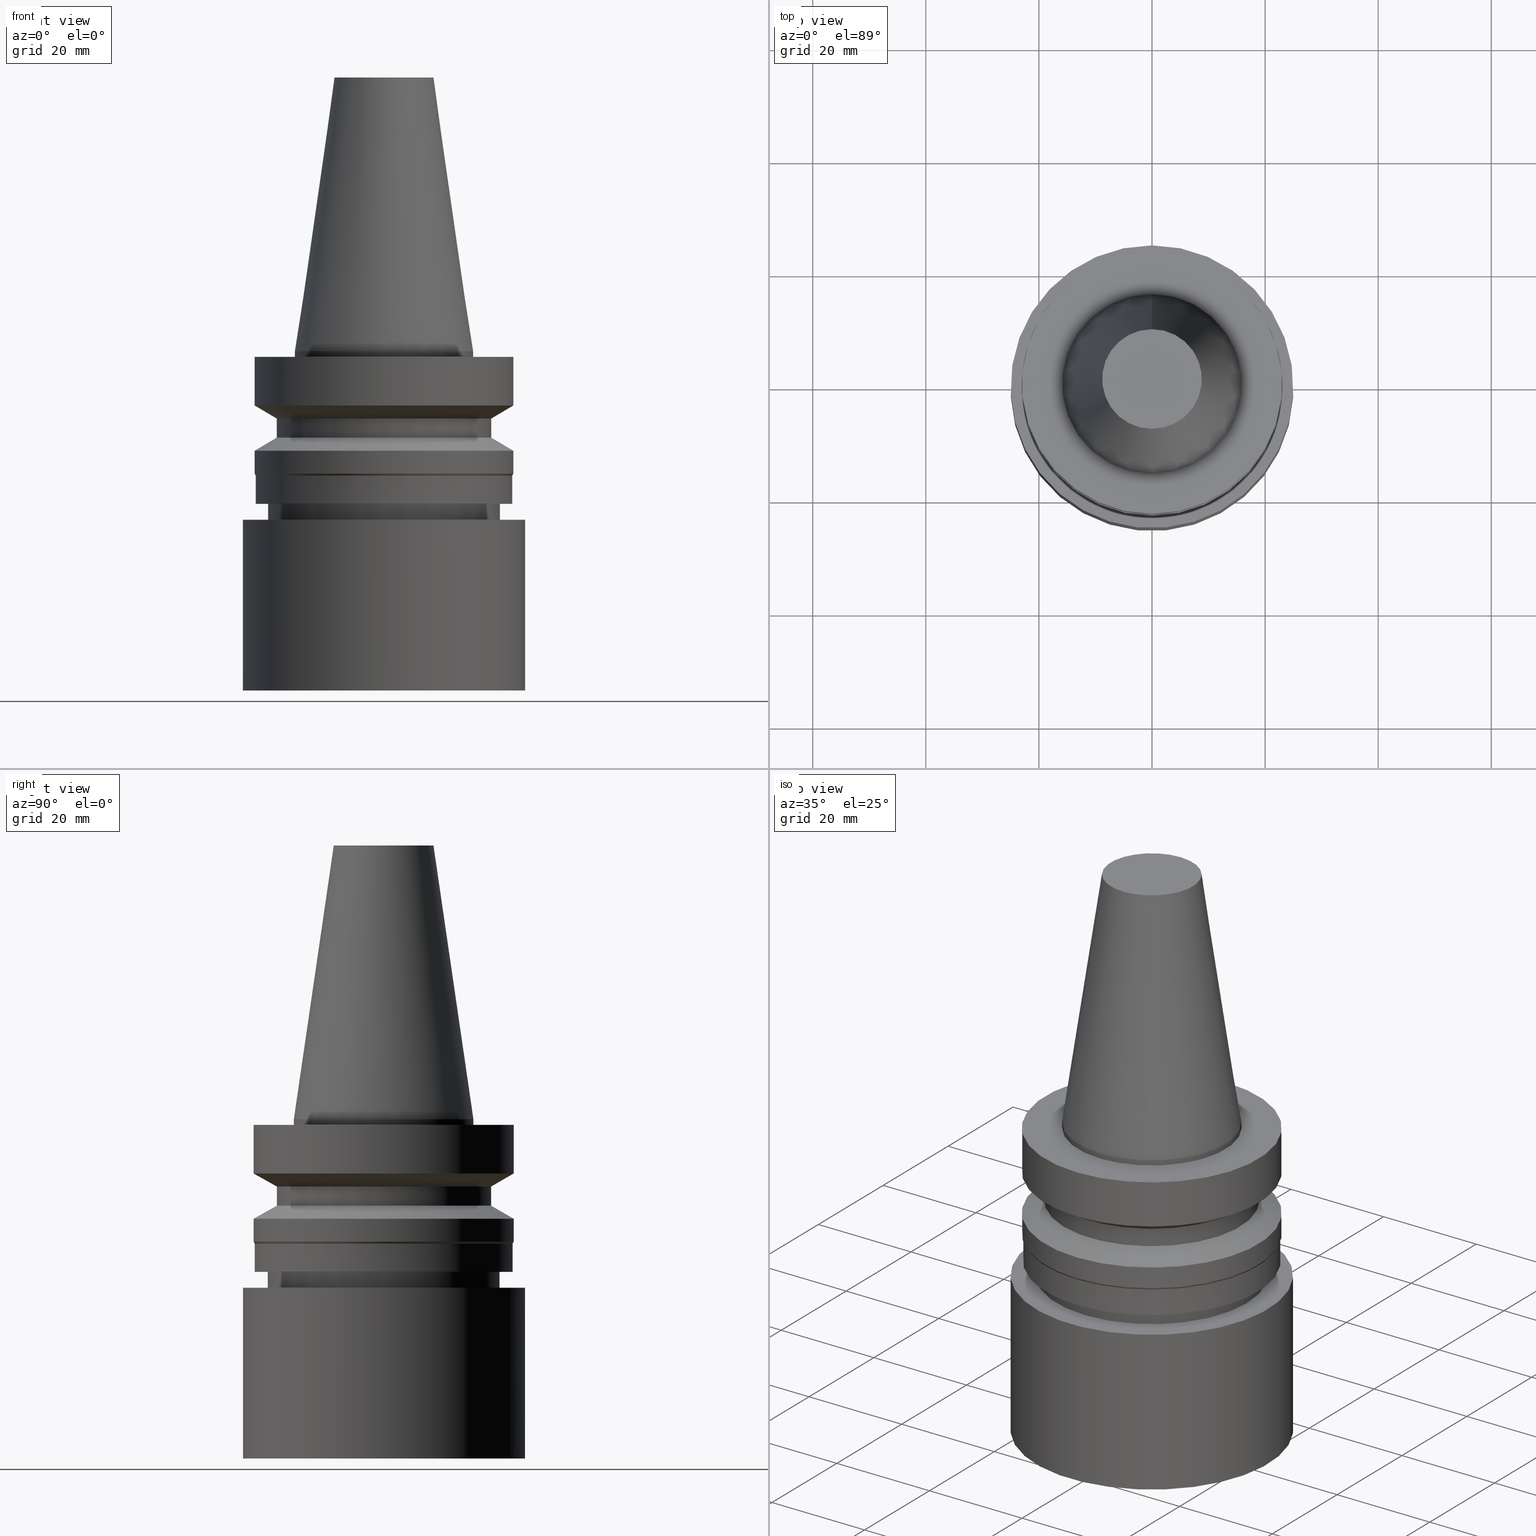
[diagram: canonical four-view strip — front | top / right | iso, engineering-drawing reading convention]
A machine part, canonical four-view strip (front | top / right | iso — engineering-drawing reading convention). The complete STEP part file that produces these views, byte-faithful:
ISO-10303-21;
HEADER;
FILE_DESCRIPTION((''),'1');
FILE_NAME('V:/90_\X2\53D65F9730C730FC30BF\X0\/00_\X2\6DE18DEF30C730FC30BF\X0\/ALL/BBT-BKUS\X2\FF76FF80FF9BFF78FF9E752852A05DE556F3\X0\201801/BBT30-MEGAER/BBT30-MEGAER32-60NL.stp','2018-02-02T07:30:25',(''),(''),'Spatial Interop R21 SP3','Kubotek KeyCreator 2011 V10.0.2 (22737)',' ');
FILE_SCHEMA(('automotive_design'));
ENDSEC;
DATA;
#1=MECHANICAL_DESIGN_GEOMETRIC_PRESENTATION_REPRESENTATION(' ',(#14,#15,#16,#17,#18,#19,#20,#21,#22,#23,#24,#25,#26,#27,#28,#29,#30,#31,#32,#33,#34,#35,#36,#37,#38,#39,#40,#41,#42,#43,#44,#45,#46,#47,#48,#49,#50,#51,#52,#53),#10);
#2=PRODUCT_DEFINITION_CONTEXT('',#54,'design');
#3=APPLICATION_PROTOCOL_DEFINITION('INTERNATIONAL STANDARD','automotive_design',1994,#54);
#4=PRODUCT_CATEGORY_RELATIONSHIP('NONE','NONE',#55,#56);
#5=SHAPE_DEFINITION_REPRESENTATION(#57,#58);
#6=PRODUCT_DEFINITION_CONTEXT('',#59,'design');
#7=APPLICATION_PROTOCOL_DEFINITION('INTERNATIONAL STANDARD','automotive_design',1994,#59);
#8=PRODUCT_CATEGORY_RELATIONSHIP('NONE','NONE',#60,#61);
#9=SHAPE_DEFINITION_REPRESENTATION(#62,#63);
#10= (GEOMETRIC_REPRESENTATION_CONTEXT(3)GLOBAL_UNCERTAINTY_ASSIGNED_CONTEXT((#66))GLOBAL_UNIT_ASSIGNED_CONTEXT((#68,#69,#70))REPRESENTATION_CONTEXT('NONE','WORKSPACE'));
#14=STYLED_ITEM('',(#72,#73),#74);
#15=STYLED_ITEM('',(#75),#76);
#16=STYLED_ITEM('',(#77,#78),#79);
#17=STYLED_ITEM('',(#80),#81);
#18=STYLED_ITEM('',(#82),#83);
#19=STYLED_ITEM('',(#84,#85),#86);
#20=STYLED_ITEM('',(#87),#88);
#21=STYLED_ITEM('',(#89),#90);
#22=STYLED_ITEM('',(#91,#92),#93);
#23=STYLED_ITEM('',(#94,#95),#96);
#24=STYLED_ITEM('',(#97,#98),#99);
#25=STYLED_ITEM('',(#100),#101);
#26=STYLED_ITEM('',(#102),#103);
#27=STYLED_ITEM('',(#104,#105),#106);
#28=STYLED_ITEM('',(#107),#108);
#29=STYLED_ITEM('',(#109,#110),#111);
#30=STYLED_ITEM('',(#112,#113),#114);
#31=STYLED_ITEM('',(#115,#116),#117);
#32=STYLED_ITEM('',(#118,#119),#120);
#33=STYLED_ITEM('',(#121,#122),#123);
#34=STYLED_ITEM('',(#124,#125),#126);
#35=STYLED_ITEM('',(#127),#128);
#36=STYLED_ITEM('',(#129),#130);
#37=STYLED_ITEM('',(#131,#132),#133);
#38=STYLED_ITEM('',(#134,#135),#136);
#39=STYLED_ITEM('',(#137,#138),#139);
#40=STYLED_ITEM('',(#140,#141),#142);
#41=STYLED_ITEM('',(#143),#144);
#42=STYLED_ITEM('',(#145),#146);
#43=STYLED_ITEM('',(#147,#148),#149);
#44=STYLED_ITEM('',(#150),#151);
#45=STYLED_ITEM('',(#152),#153);
#46=STYLED_ITEM('',(#154,#155),#156);
#47=STYLED_ITEM('',(#157),#158);
#48=STYLED_ITEM('',(#159),#160);
#49=STYLED_ITEM('',(#161,#162),#163);
#50=STYLED_ITEM('',(#164,#165),#166);
#51=STYLED_ITEM('',(#167,#168),#169);
#52=STYLED_ITEM('',(#170),#171);
#53=STYLED_ITEM('',(#172),#173);
#54=APPLICATION_CONTEXT(' ');
#55=PRODUCT_CATEGORY('part','NONE');
#56=PRODUCT_RELATED_PRODUCT_CATEGORY('detail',' ',(#174));
#57=PRODUCT_DEFINITION_SHAPE('NONE','NONE',#175);
#58=ADVANCED_BREP_SHAPE_REPRESENTATION('Unnamed[1]',(#139,#176),#10);
#59=APPLICATION_CONTEXT(' ');
#60=PRODUCT_CATEGORY('part','NONE');
#61=PRODUCT_RELATED_PRODUCT_CATEGORY('detail',' ',(#177));
#62=PRODUCT_DEFINITION_SHAPE('NONE','NONE',#178);
#63=ADVANCED_BREP_SHAPE_REPRESENTATION('Unnamed[1]',(#163,#179),#10);
#66=UNCERTAINTY_MEASURE_WITH_UNIT(LENGTH_MEASURE(1.0E-006),#68,'','');
#68= (CONVERSION_BASED_UNIT('MILLIMETRE',#182)LENGTH_UNIT()NAMED_UNIT(#185));
#69= (NAMED_UNIT(#187)PLANE_ANGLE_UNIT()SI_UNIT($,.RADIAN.));
#70= (NAMED_UNIT(#187)SOLID_ANGLE_UNIT()SI_UNIT($,.STERADIAN.));
#72=PRESENTATION_STYLE_ASSIGNMENT((#193));
#73=PRESENTATION_STYLE_ASSIGNMENT((#194));
#74=ADVANCED_FACE('Unnamed[1]',(#195,#196),#197,.T.);
#75=PRESENTATION_STYLE_ASSIGNMENT((#198));
#76=EDGE_CURVE('Unnamed[1]',#199,#199,#200,.T.);
#77=PRESENTATION_STYLE_ASSIGNMENT((#201));
#78=PRESENTATION_STYLE_ASSIGNMENT((#202));
#79=ADVANCED_FACE('Unnamed[1]',(#203,#204),#205,.T.);
#80=PRESENTATION_STYLE_ASSIGNMENT((#206));
#81=EDGE_CURVE('Unnamed[1]',#207,#207,#208,.T.);
#82=PRESENTATION_STYLE_ASSIGNMENT((#209));
#83=EDGE_CURVE('Unnamed[1]',#210,#210,#211,.T.);
#84=PRESENTATION_STYLE_ASSIGNMENT((#212));
#85=PRESENTATION_STYLE_ASSIGNMENT((#213));
#86=ADVANCED_FACE('Unnamed[1]',(#214),#215,.T.);
#87=PRESENTATION_STYLE_ASSIGNMENT((#216));
#88=EDGE_CURVE('Unnamed[1]',#217,#217,#218,.T.);
#89=PRESENTATION_STYLE_ASSIGNMENT((#219));
#90=EDGE_CURVE('Unnamed[1]',#220,#220,#221,.T.);
#91=PRESENTATION_STYLE_ASSIGNMENT((#222));
#92=PRESENTATION_STYLE_ASSIGNMENT((#223));
#93=ADVANCED_FACE('Unnamed[1]',(#224,#225),#226,.T.);
#94=PRESENTATION_STYLE_ASSIGNMENT((#227));
#95=PRESENTATION_STYLE_ASSIGNMENT((#228));
#96=ADVANCED_FACE('Unnamed[1]',(#229,#230),#231,.T.);
#97=PRESENTATION_STYLE_ASSIGNMENT((#232));
#98=PRESENTATION_STYLE_ASSIGNMENT((#233));
#99=ADVANCED_FACE('Unnamed[1]',(#234,#235),#236,.T.);
#100=PRESENTATION_STYLE_ASSIGNMENT((#237));
#101=EDGE_CURVE('Unnamed[1]',#238,#238,#239,.T.);
#102=PRESENTATION_STYLE_ASSIGNMENT((#240));
#103=EDGE_CURVE('Unnamed[1]',#241,#241,#242,.T.);
#104=PRESENTATION_STYLE_ASSIGNMENT((#243));
#105=PRESENTATION_STYLE_ASSIGNMENT((#244));
#106=ADVANCED_FACE('Unnamed[1]',(#245,#246),#247,.T.);
#107=PRESENTATION_STYLE_ASSIGNMENT((#248));
#108=EDGE_CURVE('Unnamed[1]',#249,#249,#250,.T.);
#109=PRESENTATION_STYLE_ASSIGNMENT((#251));
#110=PRESENTATION_STYLE_ASSIGNMENT((#252));
#111=ADVANCED_FACE('Unnamed[1]',(#253,#254),#255,.T.);
#112=PRESENTATION_STYLE_ASSIGNMENT((#256));
#113=PRESENTATION_STYLE_ASSIGNMENT((#257));
#114=ADVANCED_FACE('Unnamed[1]',(#258,#259),#260,.T.);
#115=PRESENTATION_STYLE_ASSIGNMENT((#261));
#116=PRESENTATION_STYLE_ASSIGNMENT((#262));
#117=ADVANCED_FACE('Unnamed[1]',(#263,#264),#265,.T.);
#118=PRESENTATION_STYLE_ASSIGNMENT((#266));
#119=PRESENTATION_STYLE_ASSIGNMENT((#267));
#120=ADVANCED_FACE('Unnamed[1]',(#268,#269),#270,.T.);
#121=PRESENTATION_STYLE_ASSIGNMENT((#271));
#122=PRESENTATION_STYLE_ASSIGNMENT((#272));
#123=ADVANCED_FACE('Unnamed[1]',(#273),#274,.T.);
#124=PRESENTATION_STYLE_ASSIGNMENT((#275));
#125=PRESENTATION_STYLE_ASSIGNMENT((#276));
#126=ADVANCED_FACE('Unnamed[1]',(#277,#278),#279,.T.);
#127=PRESENTATION_STYLE_ASSIGNMENT((#280));
#128=EDGE_CURVE('Unnamed[1]',#281,#281,#282,.T.);
#129=PRESENTATION_STYLE_ASSIGNMENT((#283));
#130=EDGE_CURVE('Unnamed[1]',#284,#284,#285,.T.);
#131=PRESENTATION_STYLE_ASSIGNMENT((#286));
#132=PRESENTATION_STYLE_ASSIGNMENT((#287));
#133=ADVANCED_FACE('Unnamed[1]',(#288),#289,.T.);
#134=PRESENTATION_STYLE_ASSIGNMENT((#290));
#135=PRESENTATION_STYLE_ASSIGNMENT((#291));
#136=ADVANCED_FACE('Unnamed[1]',(#292,#293),#294,.T.);
#137=PRESENTATION_STYLE_ASSIGNMENT((#295));
#138=PRESENTATION_STYLE_ASSIGNMENT((#296));
#139=MANIFOLD_SOLID_BREP('Unnamed[1]',#297);
#140=PRESENTATION_STYLE_ASSIGNMENT((#298));
#141=PRESENTATION_STYLE_ASSIGNMENT((#299));
#142=ADVANCED_FACE('Unnamed[1]',(#300,#301),#302,.T.);
#143=PRESENTATION_STYLE_ASSIGNMENT((#303));
#144=EDGE_CURVE('Unnamed[1]',#304,#304,#305,.T.);
#145=PRESENTATION_STYLE_ASSIGNMENT((#306));
#146=EDGE_CURVE('Unnamed[1]',#307,#307,#308,.T.);
#147=PRESENTATION_STYLE_ASSIGNMENT((#309));
#148=PRESENTATION_STYLE_ASSIGNMENT((#310));
#149=ADVANCED_FACE('Unnamed[1]',(#311,#312),#313,.T.);
#150=PRESENTATION_STYLE_ASSIGNMENT((#314));
#151=EDGE_CURVE('Unnamed[1]',#315,#315,#316,.T.);
#152=PRESENTATION_STYLE_ASSIGNMENT((#317));
#153=EDGE_CURVE('Unnamed[1]',#318,#318,#319,.T.);
#154=PRESENTATION_STYLE_ASSIGNMENT((#320));
#155=PRESENTATION_STYLE_ASSIGNMENT((#321));
#156=ADVANCED_FACE('Unnamed[1]',(#322,#323),#324,.T.);
#157=PRESENTATION_STYLE_ASSIGNMENT((#325));
#158=EDGE_CURVE('Unnamed[1]',#326,#326,#327,.T.);
#159=PRESENTATION_STYLE_ASSIGNMENT((#328));
#160=EDGE_CURVE('Unnamed[1]',#329,#329,#330,.T.);
#161=PRESENTATION_STYLE_ASSIGNMENT((#331));
#162=PRESENTATION_STYLE_ASSIGNMENT((#332));
#163=MANIFOLD_SOLID_BREP('Unnamed[1]',#333);
#164=PRESENTATION_STYLE_ASSIGNMENT((#334));
#165=PRESENTATION_STYLE_ASSIGNMENT((#335));
#166=ADVANCED_FACE('Unnamed[1]',(#336,#337),#338,.T.);
#167=PRESENTATION_STYLE_ASSIGNMENT((#339));
#168=PRESENTATION_STYLE_ASSIGNMENT((#340));
#169=ADVANCED_FACE('Unnamed[1]',(#341),#342,.T.);
#170=PRESENTATION_STYLE_ASSIGNMENT((#343));
#171=EDGE_CURVE('Unnamed[1]',#344,#344,#345,.T.);
#172=PRESENTATION_STYLE_ASSIGNMENT((#346));
#173=EDGE_CURVE('Unnamed[1]',#347,#347,#348,.T.);
#174=PRODUCT('Unnamed[1]','Unnamed[1]','PART-Unnamed[1]-DESC',(#349));
#175=PRODUCT_DEFINITION('NONE','NONE',#350,#2);
#176=AXIS2_PLACEMENT_3D('',#351,#352,#353);
#177=PRODUCT('Unnamed[1]','Unnamed[1]','PART-Unnamed[1]-DESC',(#354));
#178=PRODUCT_DEFINITION('NONE','NONE',#355,#6);
#179=AXIS2_PLACEMENT_3D('',#356,#357,#358);
#182=LENGTH_MEASURE_WITH_UNIT(LENGTH_MEASURE(1.0),#359);
#185=DIMENSIONAL_EXPONENTS(1.0,0.0,0.0,0.0,0.0,0.0,0.0);
#187=DIMENSIONAL_EXPONENTS(0.0,0.0,0.0,0.0,0.0,0.0,0.0);
#193=SURFACE_STYLE_USAGE(.BOTH.,#360);
#194=CURVE_STYLE('',#361,POSITIVE_LENGTH_MEASURE(1000.0),#362);
#195=FACE_BOUND('',#363,.T.);
#196=FACE_BOUND('',#364,.T.);
#197=CYLINDRICAL_SURFACE('',#365,23.0);
#198=CURVE_STYLE('',#366,POSITIVE_LENGTH_MEASURE(1000.0),#367);
#199=VERTEX_POINT('',#368);
#200=CIRCLE('',#369,25.0);
#201=SURFACE_STYLE_USAGE(.BOTH.,#370);
#202=CURVE_STYLE('',#371,POSITIVE_LENGTH_MEASURE(1000.0),#372);
#203=FACE_BOUND('',#373,.T.);
#204=FACE_BOUND('',#374,.T.);
#205=CYLINDRICAL_SURFACE('',#375,20.0);
#206=CURVE_STYLE('',#376,POSITIVE_LENGTH_MEASURE(1000.0),#377);
#207=VERTEX_POINT('',#378);
#208=CIRCLE('',#379,15.875);
#209=CURVE_STYLE('',#380,POSITIVE_LENGTH_MEASURE(1000.0),#381);
#210=VERTEX_POINT('',#382);
#211=CIRCLE('',#383,8.81650000198669);
#212=SURFACE_STYLE_USAGE(.BOTH.,#384);
#213=CURVE_STYLE('',#385,POSITIVE_LENGTH_MEASURE(1000.0),#386);
#214=FACE_OUTER_BOUND('',#387,.T.);
#215=PLANE('',#388);
#216=CURVE_STYLE('',#389,POSITIVE_LENGTH_MEASURE(1000.0),#390);
#217=VERTEX_POINT('',#391);
#218=CIRCLE('',#392,19.0);
#219=CURVE_STYLE('',#393,POSITIVE_LENGTH_MEASURE(1000.0),#394);
#220=VERTEX_POINT('',#395);
#221=CIRCLE('',#396,25.0);
#222=SURFACE_STYLE_USAGE(.BOTH.,#397);
#223=CURVE_STYLE('',#398,POSITIVE_LENGTH_MEASURE(1000.0),#399);
#224=FACE_BOUND('',#400,.T.);
#225=FACE_BOUND('',#401,.T.);
#226=CYLINDRICAL_SURFACE('',#402,19.0);
#227=SURFACE_STYLE_USAGE(.BOTH.,#403);
#228=CURVE_STYLE('',#404,POSITIVE_LENGTH_MEASURE(1000.0),#405);
#229=FACE_BOUND('',#406,.T.);
#230=FACE_BOUND('',#407,.T.);
#231=CONICAL_SURFACE('',#408,12.3457500009933,0.144815870013618);
#232=SURFACE_STYLE_USAGE(.BOTH.,#409);
#233=CURVE_STYLE('',#410,POSITIVE_LENGTH_MEASURE(1000.0),#411);
#234=FACE_BOUND('',#412,.T.);
#235=FACE_BOUND('',#413,.T.);
#236=CYLINDRICAL_SURFACE('',#414,20.4999999999961);
#237=CURVE_STYLE('',#415,POSITIVE_LENGTH_MEASURE(1000.0),#416);
#238=VERTEX_POINT('',#417);
#239=CIRCLE('',#418,22.7999999999997);
#240=CURVE_STYLE('',#419,POSITIVE_LENGTH_MEASURE(1000.0),#420);
#241=VERTEX_POINT('',#421);
#242=CIRCLE('',#422,23.0);
#243=SURFACE_STYLE_USAGE(.BOTH.,#423);
#244=CURVE_STYLE('',#424,POSITIVE_LENGTH_MEASURE(1000.0),#425);
#245=FACE_OUTER_BOUND('',#426,.T.);
#246=FACE_BOUND('',#427,.T.);
#247=PLANE('',#428);
#248=CURVE_STYLE('',#429,POSITIVE_LENGTH_MEASURE(1000.0),#430);
#249=VERTEX_POINT('',#431);
#250=CIRCLE('',#432,20.5000000000012);
#251=SURFACE_STYLE_USAGE(.BOTH.,#433);
#252=CURVE_STYLE('',#434,POSITIVE_LENGTH_MEASURE(1000.0),#435);
#253=FACE_BOUND('',#436,.T.);
#254=FACE_BOUND('',#437,.T.);
#255=CYLINDRICAL_SURFACE('',#438,25.0);
#256=SURFACE_STYLE_USAGE(.BOTH.,#439);
#257=CURVE_STYLE('',#440,POSITIVE_LENGTH_MEASURE(1000.0),#441);
#258=FACE_BOUND('',#442,.T.);
#259=FACE_BOUND('',#443,.T.);
#260=CONICAL_SURFACE('',#444,21.0,1.04719755058881);
#261=SURFACE_STYLE_USAGE(.BOTH.,#445);
#262=CURVE_STYLE('',#446,POSITIVE_LENGTH_MEASURE(1000.0),#447);
#263=FACE_BOUND('',#448,.T.);
#264=FACE_BOUND('',#449,.T.);
#265=CONICAL_SURFACE('',#450,22.8999999999998,0.523598775621832);
#266=SURFACE_STYLE_USAGE(.BOTH.,#451);
#267=CURVE_STYLE('',#452,POSITIVE_LENGTH_MEASURE(1000.0),#453);
#268=FACE_BOUND('',#454,.T.);
#269=FACE_BOUND('',#455,.T.);
#270=CYLINDRICAL_SURFACE('',#456,15.875);
#271=SURFACE_STYLE_USAGE(.BOTH.,#457);
#272=CURVE_STYLE('',#458,POSITIVE_LENGTH_MEASURE(1000.0),#459);
#273=FACE_OUTER_BOUND('',#460,.T.);
#274=PLANE('',#461);
#275=SURFACE_STYLE_USAGE(.BOTH.,#462);
#276=CURVE_STYLE('',#463,POSITIVE_LENGTH_MEASURE(1000.0),#464);
#277=FACE_BOUND('',#465,.T.);
#278=FACE_BOUND('',#466,.T.);
#279=CONICAL_SURFACE('',#467,21.0,1.04719755058882);
#280=CURVE_STYLE('',#468,POSITIVE_LENGTH_MEASURE(1000.0),#469);
#281=VERTEX_POINT('',#470);
#282=CIRCLE('',#471,20.0000000000001);
#283=CURVE_STYLE('',#472,POSITIVE_LENGTH_MEASURE(1000.0),#473);
#284=VERTEX_POINT('',#474);
#285=CIRCLE('',#475,15.875);
#286=SURFACE_STYLE_USAGE(.BOTH.,#476);
#287=CURVE_STYLE('',#477,POSITIVE_LENGTH_MEASURE(1000.0),#478);
#288=FACE_OUTER_BOUND('',#479,.T.);
#289=PLANE('',#480);
#290=SURFACE_STYLE_USAGE(.BOTH.,#481);
#291=CURVE_STYLE('',#482,POSITIVE_LENGTH_MEASURE(1000.0),#483);
#292=FACE_BOUND('',#484,.T.);
#293=FACE_BOUND('',#485,.T.);
#294=CONICAL_SURFACE('',#486,19.4499999999998,0.523598775598221);
#295=SURFACE_STYLE_USAGE(.BOTH.,#487);
#296=CURVE_STYLE('',#488,POSITIVE_LENGTH_MEASURE(1000.0),#489);
#297=CLOSED_SHELL('',(#123,#96,#120,#106,#166,#114,#93,#126,#74,#117,#156,#149,#99,#142,#79,#136,#133));
#298=SURFACE_STYLE_USAGE(.BOTH.,#490);
#299=CURVE_STYLE('',#491,POSITIVE_LENGTH_MEASURE(1000.0),#492);
#300=FACE_BOUND('',#493,.T.);
#301=FACE_BOUND('',#494,.T.);
#302=CONICAL_SURFACE('',#495,20.2500000000006,1.04719755120244);
#303=CURVE_STYLE('',#496,POSITIVE_LENGTH_MEASURE(1000.0),#497);
#304=VERTEX_POINT('',#498);
#305=CIRCLE('',#499,20.0);
#306=CURVE_STYLE('',#500,POSITIVE_LENGTH_MEASURE(1000.0),#501);
#307=VERTEX_POINT('',#502);
#308=CIRCLE('',#503,20.4999999999911);
#309=SURFACE_STYLE_USAGE(.BOTH.,#504);
#310=CURVE_STYLE('',#505,POSITIVE_LENGTH_MEASURE(1000.0),#506);
#311=FACE_BOUND('',#507,.T.);
#312=FACE_OUTER_BOUND('',#508,.T.);
#313=PLANE('',#509);
#314=CURVE_STYLE('',#510,POSITIVE_LENGTH_MEASURE(1000.0),#511);
#315=VERTEX_POINT('',#512);
#316=CIRCLE('',#513,23.0);
#317=CURVE_STYLE('',#514,POSITIVE_LENGTH_MEASURE(1000.0),#515);
#318=VERTEX_POINT('',#516);
#319=CIRCLE('',#517,23.0);
#320=SURFACE_STYLE_USAGE(.BOTH.,#518);
#321=CURVE_STYLE('',#519,POSITIVE_LENGTH_MEASURE(1000.0),#520);
#322=FACE_BOUND('',#521,.T.);
#323=FACE_BOUND('',#522,.T.);
#324=CYLINDRICAL_SURFACE('',#523,22.7999999999999);
#325=CURVE_STYLE('',#524,POSITIVE_LENGTH_MEASURE(1000.0),#525);
#326=VERTEX_POINT('',#526);
#327=CIRCLE('',#527,23.0);
#328=CURVE_STYLE('',#528,POSITIVE_LENGTH_MEASURE(1000.0),#529);
#329=VERTEX_POINT('',#530);
#330=CIRCLE('',#531,18.8999999999996);
#331=SURFACE_STYLE_USAGE(.BOTH.,#532);
#332=CURVE_STYLE('',#533,POSITIVE_LENGTH_MEASURE(1000.0),#534);
#333=CLOSED_SHELL('',(#86,#169,#111));
#334=SURFACE_STYLE_USAGE(.BOTH.,#535);
#335=CURVE_STYLE('',#536,POSITIVE_LENGTH_MEASURE(1000.0),#537);
#336=FACE_BOUND('',#538,.T.);
#337=FACE_BOUND('',#539,.T.);
#338=CYLINDRICAL_SURFACE('',#540,23.0);
#339=SURFACE_STYLE_USAGE(.BOTH.,#541);
#340=CURVE_STYLE('',#542,POSITIVE_LENGTH_MEASURE(1000.0),#543);
#341=FACE_OUTER_BOUND('',#544,.T.);
#342=PLANE('',#545);
#343=CURVE_STYLE('',#546,POSITIVE_LENGTH_MEASURE(1000.0),#547);
#344=VERTEX_POINT('',#548);
#345=CIRCLE('',#549,22.8000000000001);
#346=CURVE_STYLE('',#550,POSITIVE_LENGTH_MEASURE(1000.0),#551);
#347=VERTEX_POINT('',#552);
#348=CIRCLE('',#553,19.0);
#349=PRODUCT_CONTEXT('',#54,'mechanical');
#350=PRODUCT_DEFINITION_FORMATION_WITH_SPECIFIED_SOURCE(' ','NONE',#174,.NOT_KNOWN.);
#351=CARTESIAN_POINT('',(0.0,0.0,0.0));
#352=DIRECTION('',(0.0,0.0,1.0));
#353=DIRECTION('',(1.0,0.0,0.0));
#354=PRODUCT_CONTEXT('',#59,'mechanical');
#355=PRODUCT_DEFINITION_FORMATION_WITH_SPECIFIED_SOURCE(' ','NONE',#177,.NOT_KNOWN.);
#356=CARTESIAN_POINT('',(0.0,0.0,0.0));
#357=DIRECTION('',(0.0,0.0,1.0));
#358=DIRECTION('',(1.0,0.0,0.0));
#359= (NAMED_UNIT(#185)LENGTH_UNIT()SI_UNIT(.MILLI.,.METRE.));
#360=SURFACE_SIDE_STYLE('',(#555));
#361=DRAUGHTING_PRE_DEFINED_CURVE_FONT('continuous');
#362=COLOUR_RGB('',0.0,1.0,0.0);
#363=EDGE_LOOP('',(#556));
#364=EDGE_LOOP('',(#557));
#365=AXIS2_PLACEMENT_3D('',#558,#559,#560);
#366=DRAUGHTING_PRE_DEFINED_CURVE_FONT('continuous');
#367=COLOUR_RGB('',0.0,1.0,0.0);
#368=CARTESIAN_POINT('',(1.82472373072956E-015,25.0,-29.8));
#369=AXIS2_PLACEMENT_3D('',#561,#562,#563);
#370=SURFACE_SIDE_STYLE('',(#564));
#371=DRAUGHTING_PRE_DEFINED_CURVE_FONT('continuous');
#372=COLOUR_RGB('',0.0,1.0,0.0);
#373=EDGE_LOOP('',(#565));
#374=EDGE_LOOP('',(#566));
#375=AXIS2_PLACEMENT_3D('',#567,#568,#569);
#376=DRAUGHTING_PRE_DEFINED_CURVE_FONT('continuous');
#377=COLOUR_RGB('',0.0,1.0,0.0);
#378=CARTESIAN_POINT('',(6.12323399573675E-017,15.875,-0.999999999999998));
#379=AXIS2_PLACEMENT_3D('',#570,#571,#572);
#380=DRAUGHTING_PRE_DEFINED_CURVE_FONT('continuous');
#381=COLOUR_RGB('',0.0,1.0,0.0);
#382=CARTESIAN_POINT('',(-2.96364525393659E-015,8.81650000198669,48.4));
#383=AXIS2_PLACEMENT_3D('',#573,#574,#575);
#384=SURFACE_SIDE_STYLE('',(#576));
#385=DRAUGHTING_PRE_DEFINED_CURVE_FONT('continuous');
#386=COLOUR_RGB('',0.0,1.0,0.0);
#387=EDGE_LOOP('',(#577));
#388=AXIS2_PLACEMENT_3D('',#578,#579,#580);
#389=DRAUGHTING_PRE_DEFINED_CURVE_FONT('continuous');
#390=COLOUR_RGB('',0.0,1.0,0.0);
#391=CARTESIAN_POINT('',(7.29240495619202E-016,19.0,-11.90940108));
#392=AXIS2_PLACEMENT_3D('',#581,#582,#583);
#393=DRAUGHTING_PRE_DEFINED_CURVE_FONT('continuous');
#394=COLOUR_RGB('',0.0,1.0,0.0);
#395=CARTESIAN_POINT('',(3.67394039744206E-015,25.0,-60.0));
#396=AXIS2_PLACEMENT_3D('',#584,#585,#586);
#397=SURFACE_SIDE_STYLE('',(#587));
#398=DRAUGHTING_PRE_DEFINED_CURVE_FONT('continuous');
#399=COLOUR_RGB('',0.0,1.0,0.0);
#400=EDGE_LOOP('',(#588));
#401=EDGE_LOOP('',(#589));
#402=AXIS2_PLACEMENT_3D('',#590,#591,#592);
#403=SURFACE_SIDE_STYLE('',(#593));
#404=DRAUGHTING_PRE_DEFINED_CURVE_FONT('continuous');
#405=COLOUR_RGB('',0.0,1.0,0.0);
#406=EDGE_LOOP('',(#594));
#407=EDGE_LOOP('',(#595));
#408=AXIS2_PLACEMENT_3D('',#596,#597,#598);
#409=SURFACE_SIDE_STYLE('',(#599));
#410=DRAUGHTING_PRE_DEFINED_CURVE_FONT('continuous');
#411=COLOUR_RGB('',0.0,1.0,0.0);
#412=EDGE_LOOP('',(#600));
#413=EDGE_LOOP('',(#601));
#414=AXIS2_PLACEMENT_3D('',#602,#603,#604);
#415=DRAUGHTING_PRE_DEFINED_CURVE_FONT('continuous');
#416=COLOUR_RGB('',0.0,1.0,0.0);
#417=CARTESIAN_POINT('',(1.34711147906111E-015,22.7999999999997,-21.9999999999841));
#418=AXIS2_PLACEMENT_3D('',#605,#606,#607);
#419=DRAUGHTING_PRE_DEFINED_CURVE_FONT('continuous');
#420=COLOUR_RGB('',0.0,1.0,0.0);
#421=CARTESIAN_POINT('',(1.32589997428773E-015,23.0,-21.6535898384886));
#422=AXIS2_PLACEMENT_3D('',#608,#609,#610);
#423=SURFACE_SIDE_STYLE('',(#611));
#424=DRAUGHTING_PRE_DEFINED_CURVE_FONT('continuous');
#425=COLOUR_RGB('',0.0,1.0,0.0);
#426=EDGE_LOOP('',(#612));
#427=EDGE_LOOP('',(#613));
#428=AXIS2_PLACEMENT_3D('',#614,#615,#616);
#429=DRAUGHTING_PRE_DEFINED_CURVE_FONT('continuous');
#430=COLOUR_RGB('',0.0,1.0,0.0);
#431=CARTESIAN_POINT('',(2.03361678293588E-015,20.5000000000012,-33.211482434801));
#432=AXIS2_PLACEMENT_3D('',#617,#618,#619);
#433=SURFACE_SIDE_STYLE('',(#620));
#434=DRAUGHTING_PRE_DEFINED_CURVE_FONT('continuous');
#435=COLOUR_RGB('',0.0,1.0,0.0);
#436=EDGE_LOOP('',(#621));
#437=EDGE_LOOP('',(#622));
#438=AXIS2_PLACEMENT_3D('',#623,#624,#625);
#439=SURFACE_SIDE_STYLE('',(#626));
#440=DRAUGHTING_PRE_DEFINED_CURVE_FONT('continuous');
#441=COLOUR_RGB('',0.0,1.0,0.0);
#442=EDGE_LOOP('',(#627));
#443=EDGE_LOOP('',(#628));
#444=AXIS2_PLACEMENT_3D('',#629,#630,#631);
#445=SURFACE_SIDE_STYLE('',(#632));
#446=DRAUGHTING_PRE_DEFINED_CURVE_FONT('continuous');
#447=COLOUR_RGB('',0.0,1.0,0.0);
#448=EDGE_LOOP('',(#633));
#449=EDGE_LOOP('',(#634));
#450=AXIS2_PLACEMENT_3D('',#635,#636,#637);
#451=SURFACE_SIDE_STYLE('',(#638));
#452=DRAUGHTING_PRE_DEFINED_CURVE_FONT('continuous');
#453=COLOUR_RGB('',0.0,1.0,0.0);
#454=EDGE_LOOP('',(#639));
#455=EDGE_LOOP('',(#640));
#456=AXIS2_PLACEMENT_3D('',#641,#642,#643);
#457=SURFACE_SIDE_STYLE('',(#644));
#458=DRAUGHTING_PRE_DEFINED_CURVE_FONT('continuous');
#459=COLOUR_RGB('',0.0,1.0,0.0);
#460=EDGE_LOOP('',(#645));
#461=AXIS2_PLACEMENT_3D('',#646,#647,#648);
#462=SURFACE_SIDE_STYLE('',(#649));
#463=DRAUGHTING_PRE_DEFINED_CURVE_FONT('continuous');
#464=COLOUR_RGB('',0.0,1.0,0.0);
#465=EDGE_LOOP('',(#650));
#466=EDGE_LOOP('',(#651));
#467=AXIS2_PLACEMENT_3D('',#652,#653,#654);
#468=DRAUGHTING_PRE_DEFINED_CURVE_FONT('continuous');
#469=COLOUR_RGB('',0.0,1.0,0.0);
#470=CARTESIAN_POINT('',(2.88372138165122E-015,20.0000000000001,-47.0947441116734));
#471=AXIS2_PLACEMENT_3D('',#655,#656,#657);
#472=DRAUGHTING_PRE_DEFINED_CURVE_FONT('continuous');
#473=COLOUR_RGB('',0.0,1.0,0.0);
#474=CARTESIAN_POINT('',(-1.95674482349743E-031,15.875,1.94412679364642E-015));
#475=AXIS2_PLACEMENT_3D('',#658,#659,#660);
#476=SURFACE_SIDE_STYLE('',(#661));
#477=DRAUGHTING_PRE_DEFINED_CURVE_FONT('continuous');
#478=COLOUR_RGB('',0.0,1.0,0.0);
#479=EDGE_LOOP('',(#662));
#480=AXIS2_PLACEMENT_3D('',#663,#664,#665);
#481=SURFACE_SIDE_STYLE('',(#666));
#482=DRAUGHTING_PRE_DEFINED_CURVE_FONT('continuous');
#483=COLOUR_RGB('',0.0,1.0,0.0);
#484=EDGE_LOOP('',(#667));
#485=EDGE_LOOP('',(#668));
#486=AXIS2_PLACEMENT_3D('',#669,#670,#671);
#487=SURFACE_SIDE_STYLE('',(#672));
#488=DRAUGHTING_PRE_DEFINED_CURVE_FONT('continuous');
#489=COLOUR_RGB('',0.0,1.0,0.0);
#490=SURFACE_SIDE_STYLE('',(#673));
#491=DRAUGHTING_PRE_DEFINED_CURVE_FONT('continuous');
#492=COLOUR_RGB('',0.0,1.0,0.0);
#493=EDGE_LOOP('',(#674));
#494=EDGE_LOOP('',(#675));
#495=AXIS2_PLACEMENT_3D('',#676,#677,#678);
#496=DRAUGHTING_PRE_DEFINED_CURVE_FONT('continuous');
#497=COLOUR_RGB('',0.0,1.0,0.0);
#498=CARTESIAN_POINT('',(2.05129303691443E-015,20.0,-33.5001575693926));
#499=AXIS2_PLACEMENT_3D('',#679,#680,#681);
#500=DRAUGHTING_PRE_DEFINED_CURVE_FONT('continuous');
#501=COLOUR_RGB('',0.0,1.0,0.0);
#502=CARTESIAN_POINT('',(1.65328282719226E-015,20.4999999999911,-27.0001575694044));
#503=AXIS2_PLACEMENT_3D('',#682,#683,#684);
#504=SURFACE_SIDE_STYLE('',(#685));
#505=DRAUGHTING_PRE_DEFINED_CURVE_FONT('continuous');
#506=COLOUR_RGB('',0.0,1.0,0.0);
#507=EDGE_LOOP('',(#686));
#508=EDGE_LOOP('',(#687));
#509=AXIS2_PLACEMENT_3D('',#688,#689,#690);
#510=DRAUGHTING_PRE_DEFINED_CURVE_FONT('continuous');
#511=COLOUR_RGB('',0.0,1.0,0.0);
#512=CARTESIAN_POINT('',(5.87830463590729E-016,23.0,-9.59999999999999));
#513=AXIS2_PLACEMENT_3D('',#691,#692,#693);
#514=DRAUGHTING_PRE_DEFINED_CURVE_FONT('continuous');
#515=COLOUR_RGB('',0.0,1.0,0.0);
#516=CARTESIAN_POINT('',(1.07768918324967E-015,23.0,-17.6));
#517=AXIS2_PLACEMENT_3D('',#694,#695,#696);
#518=SURFACE_SIDE_STYLE('',(#697));
#519=DRAUGHTING_PRE_DEFINED_CURVE_FONT('continuous');
#520=COLOUR_RGB('',0.0,1.0,0.0);
#521=EDGE_LOOP('',(#698));
#522=EDGE_LOOP('',(#699));
#523=AXIS2_PLACEMENT_3D('',#700,#701,#702);
#524=DRAUGHTING_PRE_DEFINED_CURVE_FONT('continuous');
#525=COLOUR_RGB('',0.0,1.0,0.0);
#526=CARTESIAN_POINT('',(6.12323399573674E-017,23.0,-0.999999999999997));
#527=AXIS2_PLACEMENT_3D('',#703,#704,#705);
#528=DRAUGHTING_PRE_DEFINED_CURVE_FONT('continuous');
#529=COLOUR_RGB('',0.0,1.0,0.0);
#530=CARTESIAN_POINT('',(3.00038465791103E-015,18.8999999999996,-49.0000000000003));
#531=AXIS2_PLACEMENT_3D('',#706,#707,#708);
#532=SURFACE_SIDE_STYLE('',(#709));
#533=DRAUGHTING_PRE_DEFINED_CURVE_FONT('continuous');
#534=COLOUR_RGB('',0.0,1.0,0.0);
#535=SURFACE_SIDE_STYLE('',(#710));
#536=DRAUGHTING_PRE_DEFINED_CURVE_FONT('continuous');
#537=COLOUR_RGB('',0.0,1.0,0.0);
#538=EDGE_LOOP('',(#711));
#539=EDGE_LOOP('',(#712));
#540=AXIS2_PLACEMENT_3D('',#713,#714,#715);
#541=SURFACE_SIDE_STYLE('',(#716));
#542=DRAUGHTING_PRE_DEFINED_CURVE_FONT('continuous');
#543=COLOUR_RGB('',0.0,1.0,0.0);
#544=EDGE_LOOP('',(#717));
#545=AXIS2_PLACEMENT_3D('',#718,#719,#720);
#546=DRAUGHTING_PRE_DEFINED_CURVE_FONT('continuous');
#547=COLOUR_RGB('',0.0,1.0,0.0);
#548=CARTESIAN_POINT('',(1.65328282719225E-015,22.8000000000001,-27.0001575694042));
#549=AXIS2_PLACEMENT_3D('',#721,#722,#723);
#550=DRAUGHTING_PRE_DEFINED_CURVE_FONT('continuous');
#551=COLOUR_RGB('',0.0,1.0,0.0);
#552=CARTESIAN_POINT('',(9.36279151221199E-016,19.0,-15.29059892));
#553=AXIS2_PLACEMENT_3D('',#724,#725,#726);
#555=SURFACE_STYLE_FILL_AREA(#727);
#556=ORIENTED_EDGE('',*,*,#103,.F.);
#557=ORIENTED_EDGE('',*,*,#153,.T.);
#558=CARTESIAN_POINT('',(1.2017945787687E-015,2.4035891575374E-015,-19.6267949192443));
#559=DIRECTION('',(6.12323399573677E-017,1.22464679914735E-016,-1.0));
#560=DIRECTION('',(-1.23259516440783E-032,1.0,1.22464679914735E-016));
#561=CARTESIAN_POINT('',(1.82472373072956E-015,3.64944746145911E-015,-29.8));
#562=DIRECTION('',(6.12323399573677E-017,1.22464679914735E-016,-1.0));
#563=DIRECTION('',(-1.23259516440783E-032,1.0,1.22464679914735E-016));
#564=SURFACE_STYLE_FILL_AREA(#728);
#565=ORIENTED_EDGE('',*,*,#128,.F.);
#566=ORIENTED_EDGE('',*,*,#144,.T.);
#567=CARTESIAN_POINT('',(2.46750720928283E-015,4.93501441856565E-015,-40.297450840533));
#568=DIRECTION('',(6.12323399573677E-017,1.22464679914735E-016,-1.0));
#569=DIRECTION('',(-1.23259516440783E-032,1.0,1.22464679914735E-016));
#570=CARTESIAN_POINT('',(6.12323399573677E-017,1.22464679914735E-016,-1.0));
#571=DIRECTION('',(6.12323399573677E-017,1.22464679914735E-016,-1.0));
#572=DIRECTION('',(-1.23259516440783E-032,1.0,1.22464679914735E-016));
#573=CARTESIAN_POINT('',(-2.96364525393659E-015,-5.92729050787319E-015,48.4));
#574=DIRECTION('',(6.12323399573677E-017,1.22464679914735E-016,-1.0));
#575=DIRECTION('',(-1.23259516440783E-032,1.0,1.22464679914735E-016));
#576=SURFACE_STYLE_FILL_AREA(#729);
#577=ORIENTED_EDGE('',*,*,#90,.T.);
#578=CARTESIAN_POINT('',(3.67394039744206E-015,12.5,-60.0));
#579=DIRECTION('',(6.12323399573677E-017,1.22464679914735E-016,-1.0));
#580=DIRECTION('',(-1.23259516440783E-032,1.0,1.22464679914735E-016));
#581=CARTESIAN_POINT('',(7.29240495619202E-016,1.4584809912384E-015,-11.90940108));
#582=DIRECTION('',(6.12323399573677E-017,1.22464679914735E-016,-1.0));
#583=DIRECTION('',(-1.23259516440783E-032,1.0,1.22464679914735E-016));
#584=CARTESIAN_POINT('',(3.67394039744206E-015,7.34788079488412E-015,-60.0));
#585=DIRECTION('',(6.12323399573677E-017,1.22464679914735E-016,-1.0));
#586=DIRECTION('',(-1.23259516440783E-032,1.0,1.22464679914735E-016));
#587=SURFACE_STYLE_FILL_AREA(#730);
#588=ORIENTED_EDGE('',*,*,#173,.F.);
#589=ORIENTED_EDGE('',*,*,#88,.T.);
#590=CARTESIAN_POINT('',(8.32759823420201E-016,1.6655196468404E-015,-13.6));
#591=DIRECTION('',(6.12323399573677E-017,1.22464679914735E-016,-1.0));
#592=DIRECTION('',(-1.23259516440783E-032,1.0,1.22464679914735E-016));
#593=SURFACE_STYLE_FILL_AREA(#731);
#594=ORIENTED_EDGE('',*,*,#130,.F.);
#595=ORIENTED_EDGE('',*,*,#83,.T.);
#596=CARTESIAN_POINT('',(-1.4818226269683E-015,-2.96364525393659E-015,24.2));
#597=DIRECTION('',(6.12323399573677E-017,1.22464679914735E-016,-1.0));
#598=DIRECTION('',(-1.23259516440783E-032,1.0,1.22464679914735E-016));
#599=SURFACE_STYLE_FILL_AREA(#732);
#600=ORIENTED_EDGE('',*,*,#108,.F.);
#601=ORIENTED_EDGE('',*,*,#146,.T.);
#602=CARTESIAN_POINT('',(1.84344980506407E-015,3.68689961012814E-015,-30.1058200021027));
#603=DIRECTION('',(6.12323399573677E-017,1.22464679914735E-016,-1.0));
#604=DIRECTION('',(-1.23259516440783E-032,1.0,1.22464679914735E-016));
#605=CARTESIAN_POINT('',(1.34711147906111E-015,2.69422295812223E-015,-21.9999999999841));
#606=DIRECTION('',(6.12323399573677E-017,1.22464679914735E-016,-1.0));
#607=DIRECTION('',(-1.23259516440783E-032,1.0,1.22464679914735E-016));
#608=CARTESIAN_POINT('',(1.32589997428773E-015,2.65179994857547E-015,-21.6535898384886));
#609=DIRECTION('',(6.12323399573677E-017,1.22464679914735E-016,-1.0));
#610=DIRECTION('',(-1.23259516440783E-032,1.0,1.22464679914735E-016));
#611=SURFACE_STYLE_FILL_AREA(#733);
#612=ORIENTED_EDGE('',*,*,#158,.F.);
#613=ORIENTED_EDGE('',*,*,#81,.T.);
#614=CARTESIAN_POINT('',(6.12323399573674E-017,19.4375,-0.999999999999998));
#615=DIRECTION('',(-6.12323399573677E-017,-1.22464679914735E-016,1.0));
#616=DIRECTION('',(1.23259516440783E-032,-1.0,-1.22464679914735E-016));
#617=CARTESIAN_POINT('',(2.03361678293588E-015,4.06723356587176E-015,-33.211482434801));
#618=DIRECTION('',(6.12323399573677E-017,1.22464679914735E-016,-1.0));
#619=DIRECTION('',(-1.23259516440783E-032,1.0,1.22464679914735E-016));
#620=SURFACE_STYLE_FILL_AREA(#734);
#621=ORIENTED_EDGE('',*,*,#90,.F.);
#622=ORIENTED_EDGE('',*,*,#76,.T.);
#623=CARTESIAN_POINT('',(2.74933206408581E-015,5.49866412817161E-015,-44.9));
#624=DIRECTION('',(6.12323399573677E-017,1.22464679914735E-016,-1.0));
#625=DIRECTION('',(-1.23259516440783E-032,1.0,1.22464679914735E-016));
#626=SURFACE_STYLE_FILL_AREA(#735);
#627=ORIENTED_EDGE('',*,*,#88,.F.);
#628=ORIENTED_EDGE('',*,*,#151,.T.);
#629=CARTESIAN_POINT('',(6.58535479604966E-016,1.31707095920993E-015,-10.75470054));
#630=DIRECTION('',(-6.12323399573677E-017,-1.22464679914735E-016,1.0));
#631=DIRECTION('',(-1.23259516440783E-032,1.0,1.22464679914735E-016));
#632=SURFACE_STYLE_FILL_AREA(#736);
#633=ORIENTED_EDGE('',*,*,#101,.F.);
#634=ORIENTED_EDGE('',*,*,#103,.T.);
#635=CARTESIAN_POINT('',(1.33650572667442E-015,2.67301145334885E-015,-21.8267949192363));
#636=DIRECTION('',(-6.12323399573677E-017,-1.22464679914735E-016,1.0));
#637=DIRECTION('',(-1.23259516440783E-032,1.0,1.22464679914735E-016));
#638=SURFACE_STYLE_FILL_AREA(#737);
#639=ORIENTED_EDGE('',*,*,#81,.F.);
#640=ORIENTED_EDGE('',*,*,#130,.T.);
#641=CARTESIAN_POINT('',(3.06161699786838E-017,6.12323399573676E-017,-0.5));
#642=DIRECTION('',(6.12323399573677E-017,1.22464679914735E-016,-1.0));
#643=DIRECTION('',(-1.23259516440783E-032,1.0,1.22464679914735E-016));
#644=SURFACE_STYLE_FILL_AREA(#738);
#645=ORIENTED_EDGE('',*,*,#83,.F.);
#646=CARTESIAN_POINT('',(-2.96364525393659E-015,4.40825000099334,48.4));
#647=DIRECTION('',(-6.12323399573677E-017,-1.22464679914735E-016,1.0));
#648=DIRECTION('',(1.23259516440783E-032,-1.0,-1.22464679914735E-016));
#649=SURFACE_STYLE_FILL_AREA(#739);
#650=ORIENTED_EDGE('',*,*,#153,.F.);
#651=ORIENTED_EDGE('',*,*,#173,.T.);
#652=CARTESIAN_POINT('',(1.00698416723543E-015,2.01396833447087E-015,-16.44529946));
#653=DIRECTION('',(6.12323399573677E-017,1.22464679914735E-016,-1.0));
#654=DIRECTION('',(-1.23259516440783E-032,1.0,1.22464679914735E-016));
#655=CARTESIAN_POINT('',(2.88372138165122E-015,5.76744276330245E-015,-47.0947441116734));
#656=DIRECTION('',(6.12323399573677E-017,1.22464679914735E-016,-1.0));
#657=DIRECTION('',(-1.23259516440783E-032,1.0,1.22464679914735E-016));
#658=CARTESIAN_POINT('',(0.0,0.0,0.0));
#659=DIRECTION('',(6.12323399573677E-017,1.22464679914735E-016,-1.0));
#660=DIRECTION('',(-1.23259516440783E-032,1.0,1.22464679914735E-016));
#661=SURFACE_STYLE_FILL_AREA(#740);
#662=ORIENTED_EDGE('',*,*,#160,.T.);
#663=CARTESIAN_POINT('',(3.00038465791103E-015,9.4499999999998,-49.0000000000002));
#664=DIRECTION('',(6.12323399573677E-017,-1.49154768176539E-014,-1.0));
#665=DIRECTION('',(9.08482394394048E-031,1.0,-1.49154768176539E-014));
#666=SURFACE_STYLE_FILL_AREA(#741);
#667=ORIENTED_EDGE('',*,*,#160,.F.);
#668=ORIENTED_EDGE('',*,*,#128,.T.);
#669=CARTESIAN_POINT('',(2.94205301978113E-015,5.88410603956226E-015,-48.0473720558369));
#670=DIRECTION('',(-6.12323399573677E-017,-1.22464679914735E-016,1.0));
#671=DIRECTION('',(-1.23259516440783E-032,1.0,1.22464679914735E-016));
#672=SURFACE_STYLE_FILL_AREA(#742);
#673=SURFACE_STYLE_FILL_AREA(#743);
#674=ORIENTED_EDGE('',*,*,#144,.F.);
#675=ORIENTED_EDGE('',*,*,#108,.T.);
#676=CARTESIAN_POINT('',(2.04245490992515E-015,4.08490981985031E-015,-33.3558200020968));
#677=DIRECTION('',(-6.12323399573677E-017,-1.22464679914735E-016,1.0));
#678=DIRECTION('',(-1.23259516440783E-032,1.0,1.22464679914735E-016));
#679=CARTESIAN_POINT('',(2.05129303691443E-015,4.10258607382886E-015,-33.5001575693926));
#680=DIRECTION('',(6.12323399573677E-017,1.22464679914735E-016,-1.0));
#681=DIRECTION('',(-1.23259516440783E-032,1.0,1.22464679914735E-016));
#682=CARTESIAN_POINT('',(1.65328282719226E-015,3.30656565438452E-015,-27.0001575694044));
#683=DIRECTION('',(6.12323399573677E-017,1.22464679914735E-016,-1.0));
#684=DIRECTION('',(-1.23259516440783E-032,1.0,1.22464679914735E-016));
#685=SURFACE_STYLE_FILL_AREA(#744);
#686=ORIENTED_EDGE('',*,*,#146,.F.);
#687=ORIENTED_EDGE('',*,*,#171,.T.);
#688=CARTESIAN_POINT('',(1.65328282719226E-015,21.6499999999956,-27.0001575694043));
#689=DIRECTION('',(6.12323399573677E-017,6.96320801344352E-014,-1.0));
#690=DIRECTION('',(-4.26856235546117E-030,1.0,6.96320801344352E-014));
#691=CARTESIAN_POINT('',(5.87830463590729E-016,1.17566092718146E-015,-9.59999999999999));
#692=DIRECTION('',(6.12323399573677E-017,1.22464679914735E-016,-1.0));
#693=DIRECTION('',(-1.23259516440783E-032,1.0,1.22464679914735E-016));
#694=CARTESIAN_POINT('',(1.07768918324967E-015,2.15537836649934E-015,-17.6));
#695=DIRECTION('',(6.12323399573677E-017,1.22464679914735E-016,-1.0));
#696=DIRECTION('',(-1.23259516440783E-032,1.0,1.22464679914735E-016));
#697=SURFACE_STYLE_FILL_AREA(#745);
#698=ORIENTED_EDGE('',*,*,#171,.F.);
#699=ORIENTED_EDGE('',*,*,#101,.T.);
#700=CARTESIAN_POINT('',(1.50019715312668E-015,3.00039430625337E-015,-24.5000787846941));
#701=DIRECTION('',(6.12323399573677E-017,1.22464679914735E-016,-1.0));
#702=DIRECTION('',(-1.23259516440783E-032,1.0,1.22464679914735E-016));
#703=CARTESIAN_POINT('',(6.12323399573677E-017,1.22464679914735E-016,-1.0));
#704=DIRECTION('',(6.12323399573677E-017,1.22464679914735E-016,-1.0));
#705=DIRECTION('',(-1.23259516440783E-032,1.0,1.22464679914735E-016));
#706=CARTESIAN_POINT('',(3.00038465791103E-015,6.00076931582207E-015,-49.0000000000003));
#707=DIRECTION('',(6.12323399573677E-017,1.22464679914735E-016,-1.0));
#708=DIRECTION('',(-1.23259516440783E-032,1.0,1.22464679914735E-016));
#709=SURFACE_STYLE_FILL_AREA(#746);
#710=SURFACE_STYLE_FILL_AREA(#747);
#711=ORIENTED_EDGE('',*,*,#151,.F.);
#712=ORIENTED_EDGE('',*,*,#158,.T.);
#713=CARTESIAN_POINT('',(3.24531401774048E-016,6.49062803548097E-016,-5.3));
#714=DIRECTION('',(6.12323399573677E-017,1.22464679914735E-016,-1.0));
#715=DIRECTION('',(-1.23259516440783E-032,1.0,1.22464679914735E-016));
#716=SURFACE_STYLE_FILL_AREA(#748);
#717=ORIENTED_EDGE('',*,*,#76,.F.);
#718=CARTESIAN_POINT('',(1.82472373072956E-015,12.5,-29.8));
#719=DIRECTION('',(-6.12323399573677E-017,-1.22464679914735E-016,1.0));
#720=DIRECTION('',(1.23259516440783E-032,-1.0,-1.22464679914735E-016));
#721=CARTESIAN_POINT('',(1.65328282719225E-015,3.3065656543845E-015,-27.0001575694042));
#722=DIRECTION('',(6.12323399573677E-017,1.22464679914735E-016,-1.0));
#723=DIRECTION('',(-1.23259516440783E-032,1.0,1.22464679914735E-016));
#724=CARTESIAN_POINT('',(9.36279151221199E-016,1.8725583024424E-015,-15.29059892));
#725=DIRECTION('',(6.12323399573677E-017,1.22464679914735E-016,-1.0));
#726=DIRECTION('',(-1.23259516440783E-032,1.0,1.22464679914735E-016));
#727=FILL_AREA_STYLE('',(#749));
#728=FILL_AREA_STYLE('',(#750));
#729=FILL_AREA_STYLE('',(#751));
#730=FILL_AREA_STYLE('',(#752));
#731=FILL_AREA_STYLE('',(#753));
#732=FILL_AREA_STYLE('',(#754));
#733=FILL_AREA_STYLE('',(#755));
#734=FILL_AREA_STYLE('',(#756));
#735=FILL_AREA_STYLE('',(#757));
#736=FILL_AREA_STYLE('',(#758));
#737=FILL_AREA_STYLE('',(#759));
#738=FILL_AREA_STYLE('',(#760));
#739=FILL_AREA_STYLE('',(#761));
#740=FILL_AREA_STYLE('',(#762));
#741=FILL_AREA_STYLE('',(#763));
#742=FILL_AREA_STYLE('',(#764));
#743=FILL_AREA_STYLE('',(#765));
#744=FILL_AREA_STYLE('',(#766));
#745=FILL_AREA_STYLE('',(#767));
#746=FILL_AREA_STYLE('',(#768));
#747=FILL_AREA_STYLE('',(#769));
#748=FILL_AREA_STYLE('',(#770));
#749=FILL_AREA_STYLE_COLOUR('',#771);
#750=FILL_AREA_STYLE_COLOUR('',#772);
#751=FILL_AREA_STYLE_COLOUR('',#773);
#752=FILL_AREA_STYLE_COLOUR('',#774);
#753=FILL_AREA_STYLE_COLOUR('',#775);
#754=FILL_AREA_STYLE_COLOUR('',#776);
#755=FILL_AREA_STYLE_COLOUR('',#777);
#756=FILL_AREA_STYLE_COLOUR('',#778);
#757=FILL_AREA_STYLE_COLOUR('',#779);
#758=FILL_AREA_STYLE_COLOUR('',#780);
#759=FILL_AREA_STYLE_COLOUR('',#781);
#760=FILL_AREA_STYLE_COLOUR('',#782);
#761=FILL_AREA_STYLE_COLOUR('',#783);
#762=FILL_AREA_STYLE_COLOUR('',#784);
#763=FILL_AREA_STYLE_COLOUR('',#785);
#764=FILL_AREA_STYLE_COLOUR('',#786);
#765=FILL_AREA_STYLE_COLOUR('',#787);
#766=FILL_AREA_STYLE_COLOUR('',#788);
#767=FILL_AREA_STYLE_COLOUR('',#789);
#768=FILL_AREA_STYLE_COLOUR('',#790);
#769=FILL_AREA_STYLE_COLOUR('',#791);
#770=FILL_AREA_STYLE_COLOUR('',#792);
#771=COLOUR_RGB('',0.0,1.0,0.0);
#772=COLOUR_RGB('',0.0,1.0,0.0);
#773=COLOUR_RGB('',0.0,1.0,0.0);
#774=COLOUR_RGB('',0.0,1.0,0.0);
#775=COLOUR_RGB('',0.0,1.0,0.0);
#776=COLOUR_RGB('',0.0,1.0,0.0);
#777=COLOUR_RGB('',0.0,1.0,0.0);
#778=COLOUR_RGB('',0.0,1.0,0.0);
#779=COLOUR_RGB('',0.0,1.0,0.0);
#780=COLOUR_RGB('',0.0,1.0,0.0);
#781=COLOUR_RGB('',0.0,1.0,0.0);
#782=COLOUR_RGB('',0.0,1.0,0.0);
#783=COLOUR_RGB('',0.0,1.0,0.0);
#784=COLOUR_RGB('',0.0,1.0,0.0);
#785=COLOUR_RGB('',0.0,1.0,0.0);
#786=COLOUR_RGB('',0.0,1.0,0.0);
#787=COLOUR_RGB('',0.0,1.0,0.0);
#788=COLOUR_RGB('',0.0,1.0,0.0);
#789=COLOUR_RGB('',0.0,1.0,0.0);
#790=COLOUR_RGB('',0.0,1.0,0.0);
#791=COLOUR_RGB('',0.0,1.0,0.0);
#792=COLOUR_RGB('',0.0,1.0,0.0);
ENDSEC;
END-ISO-10303-21;
